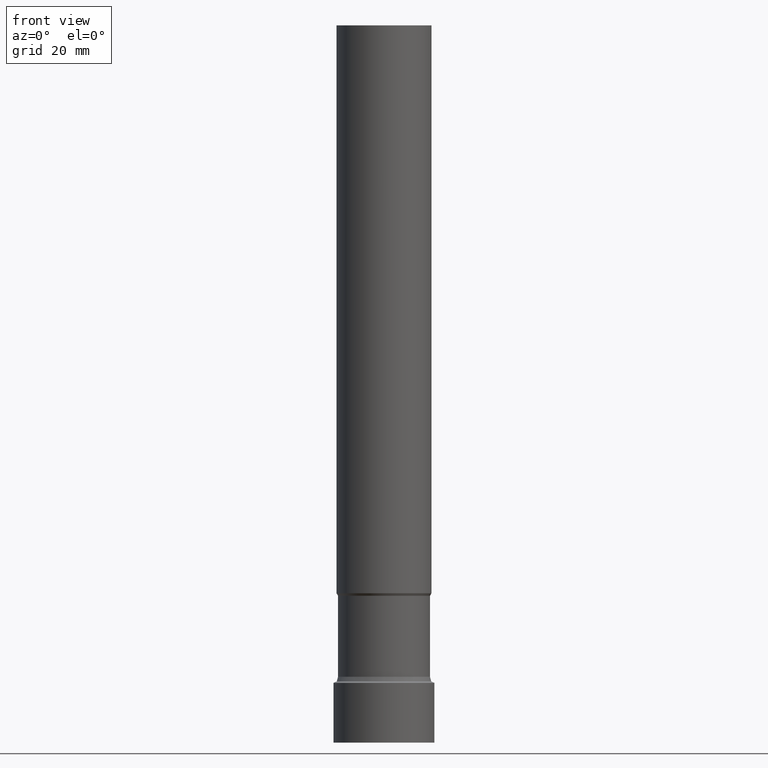
[diagram: clean part render]
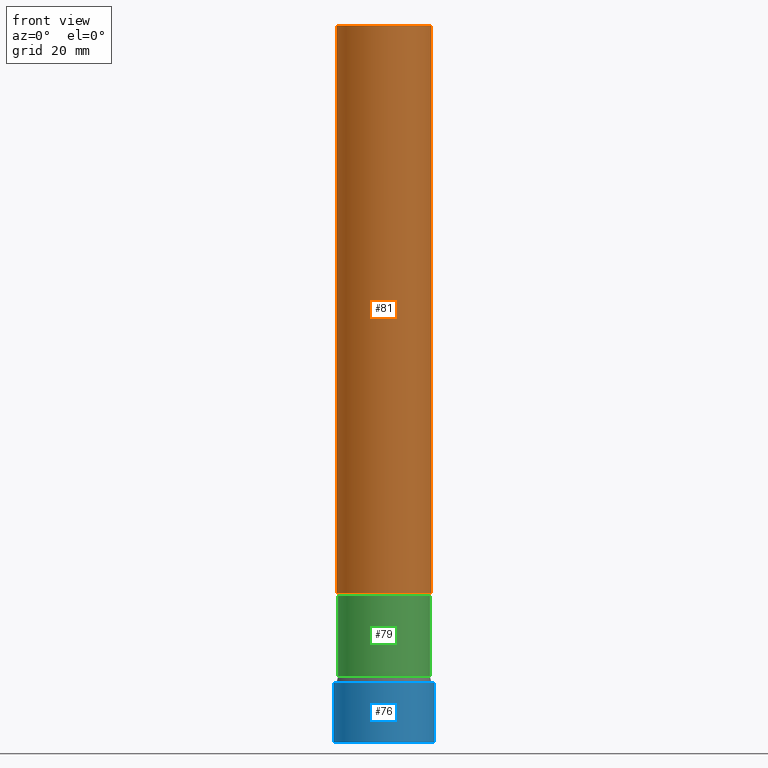
[diagram: same view with three faces highlighted in distinct colors, each labeled with its STEP entity id]
A machine part, front view with three faces highlighted in distinct colors.
Their STEP definitions:

[orange] entity #81 — the highlighted cylindrical surface (bore or boss wall) has radius 8 mm, axis along (0, 0, -1).
#81=ADVANCED_FACE('',(#101,#102),#103,.T.);
#101=FACE_BOUND('',#123,.T.);
#102=FACE_BOUND('',#124,.T.);
#103=CYLINDRICAL_SURFACE('',#125,7.99999999999999);
#123=EDGE_LOOP('',(#157));
#124=EDGE_LOOP('',(#158));
#125=AXIS2_PLACEMENT_3D('',#159,#160,#161);
#157=ORIENTED_EDGE('',*,*,#172,.F.);
#158=ORIENTED_EDGE('',*,*,#171,.T.);
#159=CARTESIAN_POINT('',(-4.43934464690917E-015,-1.25681967694364E-012,72.5000000000003));
#160=DIRECTION('',(6.12323399573677E-017,1.74562335663977E-014,-1.0));
#161=DIRECTION('',(-1.07371318084364E-030,1.0,1.74562335663977E-014));
#171=EDGE_CURVE('',#183,#183,#184,.T.);
#172=EDGE_CURVE('',#185,#185,#186,.T.);
#183=VERTEX_POINT('',#197);
#184=CIRCLE('',#198,7.99999999999997);
#185=VERTEX_POINT('',#199);
#186=CIRCLE('',#200,8.00000000000002);
#197=CARTESIAN_POINT('',(-1.53080849893423E-015,7.99999999999954,25.0000000000007));
#198=AXIS2_PLACEMENT_3D('',#216,#217,#218);
#199=CARTESIAN_POINT('',(-7.34788079488413E-015,7.99999999999793,120.0));
#200=AXIS2_PLACEMENT_3D('',#219,#220,#221);
#216=CARTESIAN_POINT('',(-1.53080849893422E-015,-4.27648582539759E-013,25.0000000000005));
#217=DIRECTION('',(-6.12323399573677E-017,-1.74562335663977E-014,1.0));
#218=DIRECTION('',(-1.07371318084364E-030,1.0,1.74562335663977E-014));
#219=CARTESIAN_POINT('',(-7.34788079488412E-015,-2.08599077134753E-012,120.0));
#220=DIRECTION('',(-6.12323399573677E-017,-1.74562335663977E-014,1.0));
#221=DIRECTION('',(-1.07371318084364E-030,1.0,1.74562335663977E-014));

[blue] entity #76 — the highlighted cylindrical surface (bore or boss wall) has radius 8.5 mm, axis along (0, 0, -1).
#76=ADVANCED_FACE('',(#86,#87),#88,.T.);
#86=FACE_BOUND('',#108,.T.);
#87=FACE_BOUND('',#109,.T.);
#88=CYLINDRICAL_SURFACE('',#110,8.50000000000002);
#108=EDGE_LOOP('',(#132));
#109=EDGE_LOOP('',(#133));
#110=AXIS2_PLACEMENT_3D('',#134,#135,#136);
#132=ORIENTED_EDGE('',*,*,#167,.F.);
#133=ORIENTED_EDGE('',*,*,#166,.T.);
#134=CARTESIAN_POINT('',(-3.06370103765542E-016,-7.85833234199683E-014,5.00340349525837));
#135=DIRECTION('',(6.12323399573676E-017,1.74562335663977E-014,-1.0));
#136=DIRECTION('',(-1.07371318084364E-030,1.0,1.74562335663977E-014));
#166=EDGE_CURVE('',#173,#173,#174,.T.);
#167=EDGE_CURVE('',#175,#175,#176,.T.);
#173=VERTEX_POINT('',#187);
#174=CIRCLE('',#188,8.49999999999993);
#175=VERTEX_POINT('',#189);
#176=CIRCLE('',#190,8.50000000000011);
#187=CARTESIAN_POINT('',(-1.04770588974665E-031,8.49999999999994,1.04094977927524E-015));
#188=AXIS2_PLACEMENT_3D('',#201,#202,#203);
#189=CARTESIAN_POINT('',(-6.12740207531101E-016,8.49999999999994,10.006806990517));
#190=AXIS2_PLACEMENT_3D('',#204,#205,#206);
#201=CARTESIAN_POINT('',(8.7016388700601E-030,8.75725662019473E-015,-1.4210854715202E-013));
#202=DIRECTION('',(-6.12323399573677E-017,-1.74562335663977E-014,1.0));
#203=DIRECTION('',(-1.07371318084364E-030,1.0,1.74562335663977E-014));
#204=CARTESIAN_POINT('',(-6.12740207531093E-016,-1.65923903460131E-013,10.0068069905169));
#205=DIRECTION('',(-6.12323399573677E-017,-1.74562335663977E-014,1.0));
#206=DIRECTION('',(-1.07371318084364E-030,1.0,1.74562335663977E-014));

[green] entity #79 — the highlighted cylindrical surface (bore or boss wall) has radius 7.75 mm, axis along (0, 0, -1).
#79=ADVANCED_FACE('',(#95,#96),#97,.T.);
#95=FACE_BOUND('',#117,.T.);
#96=FACE_BOUND('',#118,.T.);
#97=CYLINDRICAL_SURFACE('',#119,7.74999999999973);
#117=EDGE_LOOP('',(#147));
#118=EDGE_LOOP('',(#148));
#119=AXIS2_PLACEMENT_3D('',#149,#150,#151);
#147=ORIENTED_EDGE('',*,*,#170,.F.);
#148=ORIENTED_EDGE('',*,*,#169,.T.);
#149=CARTESIAN_POINT('',(-1.08973978552995E-015,-3.01907863086995E-013,17.7968012701893));
#150=DIRECTION('',(6.12323399573677E-017,1.74562335663977E-014,-1.0));
#151=DIRECTION('',(-1.07371318084364E-030,1.0,1.74562335663977E-014));
#169=EDGE_CURVE('',#179,#179,#180,.T.);
#170=EDGE_CURVE('',#181,#181,#182,.T.);
#179=VERTEX_POINT('',#193);
#180=CIRCLE('',#194,7.74999999999995);
#181=VERTEX_POINT('',#195);
#182=CIRCLE('',#196,7.74999999999951);
#193=CARTESIAN_POINT('',(-6.75185453093856E-016,7.74999999999977,11.0266152422714));
#194=AXIS2_PLACEMENT_3D('',#210,#211,#212);
#195=CARTESIAN_POINT('',(-1.50429411796605E-015,7.74999999999909,24.5669872981075));
#196=AXIS2_PLACEMENT_3D('',#213,#214,#215);
#210=CARTESIAN_POINT('',(-6.75185453093848E-016,-1.83725914495696E-013,11.0266152422713));
#211=DIRECTION('',(-6.12323399573677E-017,-1.74562335663977E-014,1.0));
#212=DIRECTION('',(-1.07371318084364E-030,1.0,1.74562335663977E-014));
#213=CARTESIAN_POINT('',(-1.50429411796604E-015,-4.20089811678294E-013,24.5669872981074));
#214=DIRECTION('',(-6.12323399573676E-017,-1.74562335663977E-014,1.0));
#215=DIRECTION('',(-1.07371318084364E-030,1.0,1.74562335663977E-014));